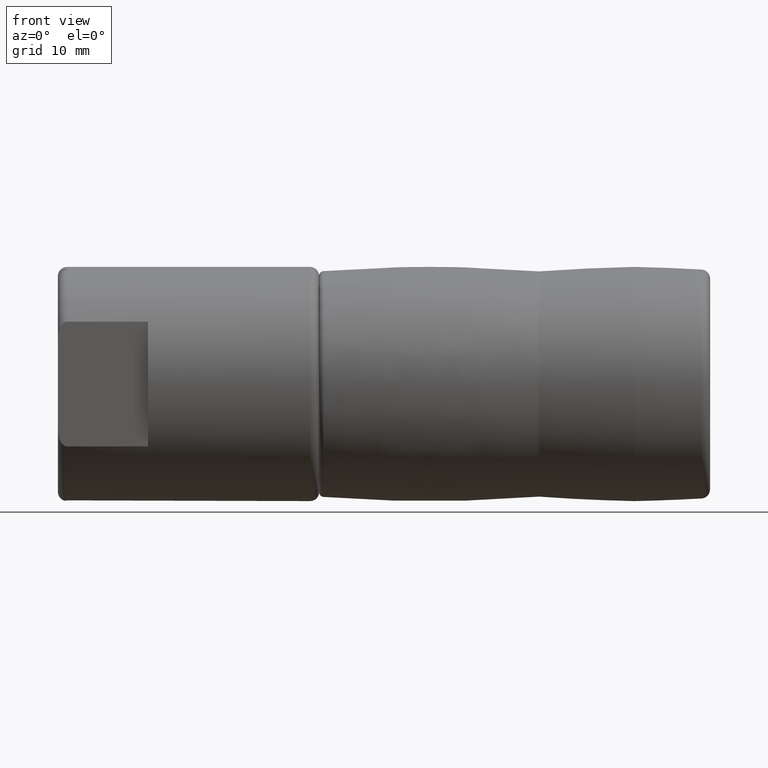
[diagram: clean part render]
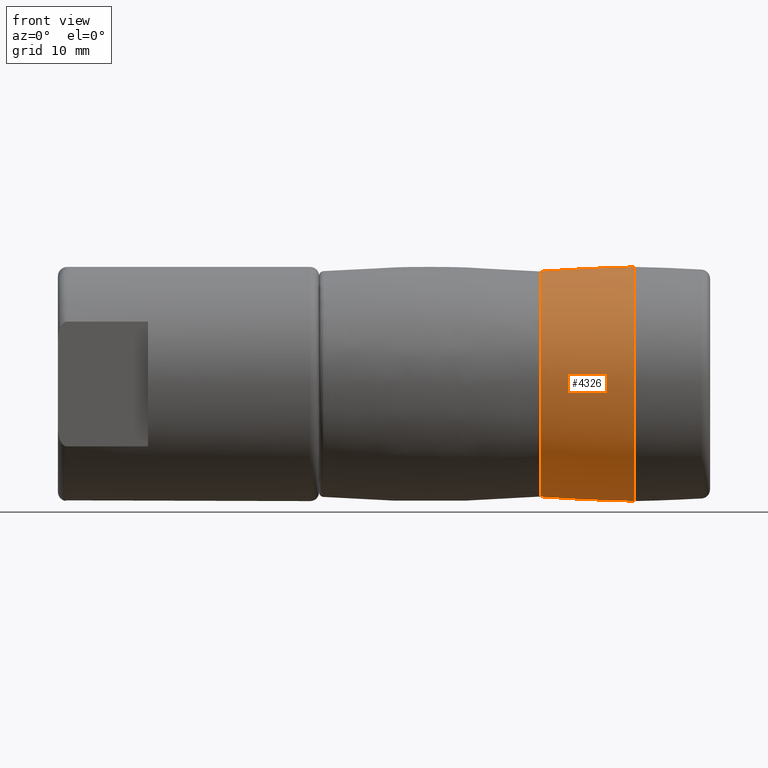
[diagram: same view with one face highlighted and labeled with its STEP entity id]
A machine part, front view. The second image highlights one B-rep face of the part: STEP entity #4326.
In plain terms, the highlighted face is a freeform B-spline surface patch.
Its self-contained STEP definition (entity closure, byte-faithful):
#175=(
BOUNDED_SURFACE()
B_SPLINE_SURFACE(2,2,((#7397,#7398,#7399,#7400,#7401,#7402,#7403,#7404,
#7405),(#7406,#7407,#7408,#7409,#7410,#7411,#7412,#7413,#7414),(#7415,#7416,
#7417,#7418,#7419,#7420,#7421,#7422,#7423)),.UNSPECIFIED.,.F.,.T.,.F.)
B_SPLINE_SURFACE_WITH_KNOTS((3,3),(3,2,2,2,3),(0.020602296114462,0.0728963304950306),
(-3.14159265358979,-1.5707963267949,0.,1.5707963267949,3.14159265358979),
 .UNSPECIFIED.)
GEOMETRIC_REPRESENTATION_ITEM()
RATIONAL_B_SPLINE_SURFACE(((1.,0.707106781186548,1.,0.707106781186548,1.,
0.707106781186548,1.,0.707106781186548,1.),(0.999658186219978,0.706865082344791,
0.999658186219978,0.706865082344791,0.999658186219978,0.706865082344791,
0.999658186219978,0.706865082344791,0.999658186219978),(1.,0.707106781186548,
1.,0.707106781186548,1.,0.707106781186548,1.,0.707106781186548,1.)))
REPRESENTATION_ITEM('')
SURFACE()
);
#954=FACE_OUTER_BOUND('',#1216,.T.);
#1216=EDGE_LOOP('',(#3070,#3071,#3072,#3073,#3074,#3075));
#1498=CIRCLE('',#4647,12.5112917281146);
#1499=CIRCLE('',#4648,12.5112917281146);
#1526=CIRCLE('',#4683,200.);
#1527=CIRCLE('',#4684,13.0000000000001);
#1528=CIRCLE('',#4685,13.0000000000001);
#1824=VERTEX_POINT('',#7174);
#1825=VERTEX_POINT('',#7176);
#1854=VERTEX_POINT('',#7424);
#1855=VERTEX_POINT('',#7426);
#2329=EDGE_CURVE('',#1824,#1825,#1498,.T.);
#2330=EDGE_CURVE('',#1825,#1824,#1499,.T.);
#2368=EDGE_CURVE('',#1824,#1854,#1526,.T.);
#2369=EDGE_CURVE('',#1854,#1855,#1527,.T.);
#2370=EDGE_CURVE('',#1855,#1854,#1528,.T.);
#3070=ORIENTED_EDGE('',*,*,#2330,.F.);
#3071=ORIENTED_EDGE('',*,*,#2329,.F.);
#3072=ORIENTED_EDGE('',*,*,#2368,.T.);
#3073=ORIENTED_EDGE('',*,*,#2369,.T.);
#3074=ORIENTED_EDGE('',*,*,#2370,.T.);
#3075=ORIENTED_EDGE('',*,*,#2368,.F.);
#4326=ADVANCED_FACE('',(#954),#175,.F.);
#4647=AXIS2_PLACEMENT_3D('',#7177,#5241,#5242);
#4648=AXIS2_PLACEMENT_3D('',#7178,#5243,#5244);
#4683=AXIS2_PLACEMENT_3D('',#7425,#5319,#5320);
#4684=AXIS2_PLACEMENT_3D('',#7427,#5321,#5322);
#4685=AXIS2_PLACEMENT_3D('',#7428,#5323,#5324);
#5241=DIRECTION('center_axis',(-1.,0.,0.));
#5242=DIRECTION('ref_axis',(0.,0.,1.));
#5243=DIRECTION('center_axis',(-1.,0.,0.));
#5244=DIRECTION('ref_axis',(0.,0.,1.));
#5319=DIRECTION('center_axis',(0.,-1.,1.22464679914735E-16));
#5320=DIRECTION('ref_axis',(0.,-1.22464679914735E-16,-1.));
#5321=DIRECTION('center_axis',(-1.,0.,0.));
#5322=DIRECTION('ref_axis',(0.,0.,1.));
#5323=DIRECTION('center_axis',(-1.,0.,0.));
#5324=DIRECTION('ref_axis',(0.,0.,1.));
#7174=CARTESIAN_POINT('',(34.2538102748082,-1.53219133680343E-15,-12.5112917281146));
#7176=CARTESIAN_POINT('',(34.2538102748082,0.,12.5112917281146));
#7177=CARTESIAN_POINT('Origin',(34.2538102748082,0.,0.));
#7178=CARTESIAN_POINT('Origin',(34.2538102748082,0.,0.));
#7397=CARTESIAN_POINT('Ctrl Pts',(44.6999999999997,0.,-13.0000000000001));
#7398=CARTESIAN_POINT('Ctrl Pts',(44.6999999999997,-13.0000000000001,-13.0000000000001));
#7399=CARTESIAN_POINT('Ctrl Pts',(44.6999999999997,-13.0000000000001,0.));
#7400=CARTESIAN_POINT('Ctrl Pts',(44.6999999999997,-13.0000000000001,13.0000000000001));
#7401=CARTESIAN_POINT('Ctrl Pts',(44.6999999999997,0.,13.0000000000001));
#7402=CARTESIAN_POINT('Ctrl Pts',(44.6999999999997,13.0000000000001,13.0000000000001));
#7403=CARTESIAN_POINT('Ctrl Pts',(44.6999999999997,13.0000000000001,0.));
#7404=CARTESIAN_POINT('Ctrl Pts',(44.6999999999997,13.0000000000001,-13.0000000000001));
#7405=CARTESIAN_POINT('Ctrl Pts',(44.6999999999997,0.,-13.0000000000001));
#7406=CARTESIAN_POINT('Ctrl Pts',(39.4705145492011,0.,-12.8922453461321));
#7407=CARTESIAN_POINT('Ctrl Pts',(39.4705145492011,-12.8922453461321,-12.8922453461321));
#7408=CARTESIAN_POINT('Ctrl Pts',(39.4705145492011,-12.8922453461321,0.));
#7409=CARTESIAN_POINT('Ctrl Pts',(39.4705145492011,-12.8922453461321,12.8922453461321));
#7410=CARTESIAN_POINT('Ctrl Pts',(39.4705145492011,0.,12.8922453461321));
#7411=CARTESIAN_POINT('Ctrl Pts',(39.4705145492011,12.8922453461321,12.8922453461321));
#7412=CARTESIAN_POINT('Ctrl Pts',(39.4705145492011,12.8922453461321,0.));
#7413=CARTESIAN_POINT('Ctrl Pts',(39.4705145492011,12.8922453461321,-12.8922453461321));
#7414=CARTESIAN_POINT('Ctrl Pts',(39.4705145492011,0.,-12.8922453461321));
#7415=CARTESIAN_POINT('Ctrl Pts',(34.2538102748082,0.,-12.5112917281147));
#7416=CARTESIAN_POINT('Ctrl Pts',(34.2538102748082,-12.5112917281147,-12.5112917281147));
#7417=CARTESIAN_POINT('Ctrl Pts',(34.2538102748082,-12.5112917281147,0.));
#7418=CARTESIAN_POINT('Ctrl Pts',(34.2538102748082,-12.5112917281147,12.5112917281147));
#7419=CARTESIAN_POINT('Ctrl Pts',(34.2538102748082,0.,12.5112917281147));
#7420=CARTESIAN_POINT('Ctrl Pts',(34.2538102748082,12.5112917281147,12.5112917281147));
#7421=CARTESIAN_POINT('Ctrl Pts',(34.2538102748082,12.5112917281147,0.));
#7422=CARTESIAN_POINT('Ctrl Pts',(34.2538102748082,12.5112917281147,-12.5112917281147));
#7423=CARTESIAN_POINT('Ctrl Pts',(34.2538102748082,0.,-12.5112917281147));
#7424=CARTESIAN_POINT('',(44.6999999999997,-1.59204083889157E-15,-13.0000000000001));
#7425=CARTESIAN_POINT('Origin',(48.8201677377629,2.28956972581787E-14,186.957556040808));
#7426=CARTESIAN_POINT('',(44.6999999999997,0.,13.0000000000001));
#7427=CARTESIAN_POINT('Origin',(44.6999999999997,0.,0.));
#7428=CARTESIAN_POINT('Origin',(44.6999999999997,0.,0.));